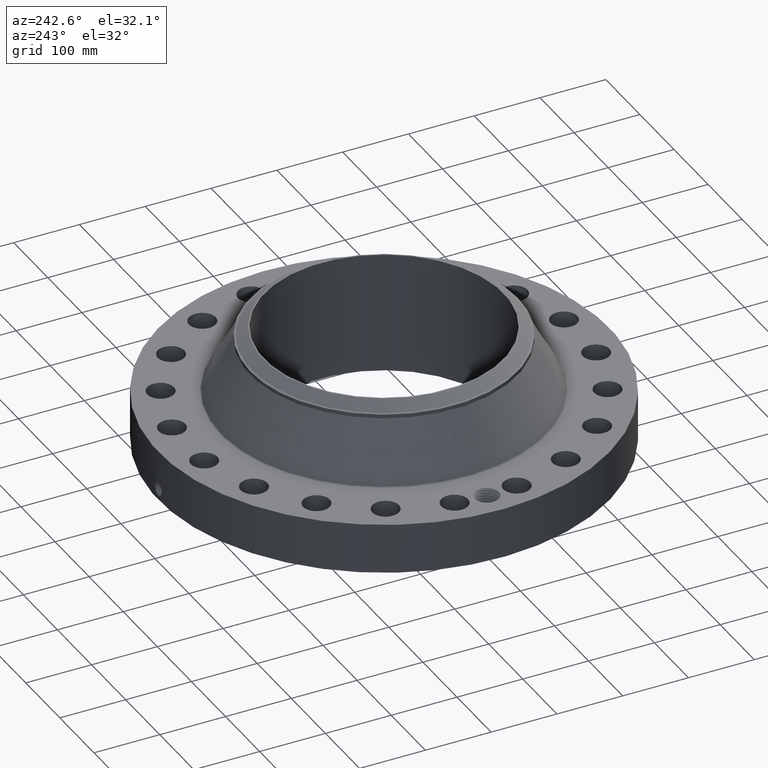
[diagram: clean part render]
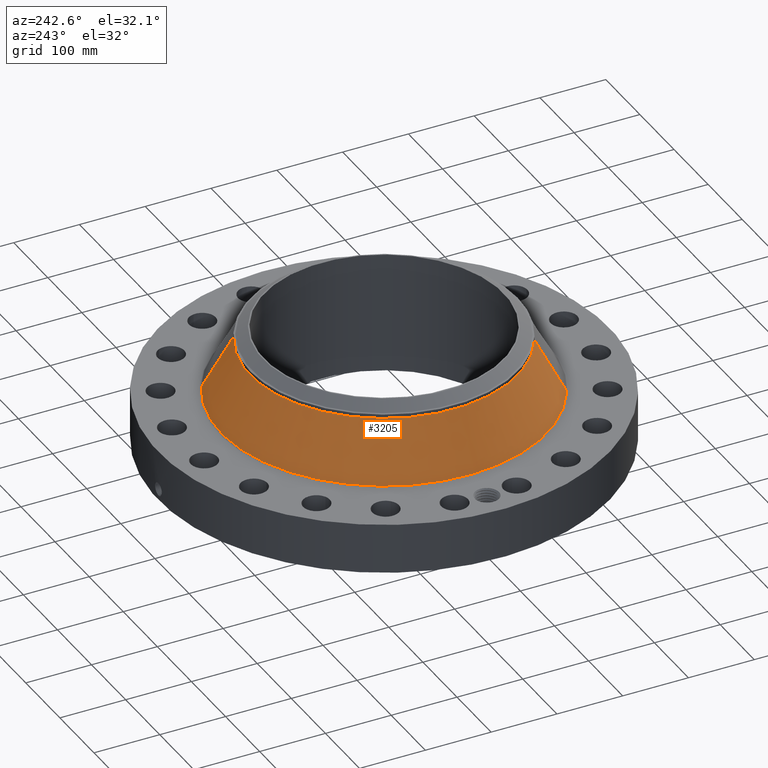
[diagram: same view with one face highlighted and labeled with its STEP entity id]
A machine part, auxiliary view. The second image highlights one B-rep face of the part: STEP entity #3205.
In plain terms, the highlighted conical surface has half-angle 28.424 deg.
Its self-contained STEP definition (entity closure, byte-faithful):
#2557=AXIS2_PLACEMENT_3D('Circle Axis2P3D',#2555,#2556,$) ;
#3166=AXIS2_PLACEMENT_3D('Cone Axis2P3D',#3163,#3164,#3165) ;
#3196=AXIS2_PLACEMENT_3D('Circle Axis2P3D',#3194,#3195,$) ;
#2533=CARTESIAN_POINT('Vertex',(4.65808237676,8.52656259739,3.31288051485)) ;
#2540=CARTESIAN_POINT('Vertex',(-4.65808237676,-8.52656259739,3.31288051485)) ;
#2555=CARTESIAN_POINT('Axis2P3D Location',(0.,0.,3.31288051485)) ;
#3163=CARTESIAN_POINT('Axis2P3D Location',(0.,0.,6.48329238413)) ;
#3168=CARTESIAN_POINT('Line Origine',(4.24674334281,7.77361154627,4.89808644949)) ;
#3172=CARTESIAN_POINT('Vertex',(3.83540430885,7.02066049515,6.48329238413)) ;
#3179=CARTESIAN_POINT('Vertex',(-3.83540430885,-7.02066049515,6.48329238413)) ;
#3182=CARTESIAN_POINT('Line Origine',(-4.24674334281,-7.77361154627,4.89808644949)) ;
#3194=CARTESIAN_POINT('Axis2P3D Location',(0.,0.,6.48329238413)) ;
#2556=DIRECTION('Axis2P3D Direction',(0.,0.,-0.0393700787402)) ;
#3164=DIRECTION('Axis2P3D Direction',(0.,0.,-0.0393700787402)) ;
#3165=DIRECTION('Axis2P3D XDirection',(-0.0188750212049,-0.0345504945626,0.)) ;
#3169=DIRECTION('Vector Direction',(0.00898442911468,0.016445887181,-0.0346239213308)) ;
#3183=DIRECTION('Vector Direction',(-0.00898442911468,-0.016445887181,-0.0346239213308)) ;
#3195=DIRECTION('Axis2P3D Direction',(0.,0.,-0.0393700787402)) ;
#3170=VECTOR('Line Direction',#3169,0.0393700787402) ;
#3184=VECTOR('Line Direction',#3183,0.0393700787402) ;
#3200=ORIENTED_EDGE('',*,*,#2559,.F.) ;
#3201=ORIENTED_EDGE('',*,*,#3186,.T.) ;
#3202=ORIENTED_EDGE('',*,*,#3198,.T.) ;
#3203=ORIENTED_EDGE('',*,*,#3174,.F.) ;
#3205=ADVANCED_FACE('PartBody',(#3204),#3167,.T.) ;
#2558=CIRCLE('generated circle',#2557,9.71596630068) ;
#3197=CIRCLE('generated circle',#3196,8.00000000003) ;
#3167=CONICAL_SURFACE('Cone',#3166,8.00000000003,0.496095884312) ;
#2559=EDGE_CURVE('',#2541,#2534,#2558,.T.) ;
#3174=EDGE_CURVE('',#2534,#3173,#3171,.F.) ;
#3186=EDGE_CURVE('',#2541,#3180,#3185,.F.) ;
#3198=EDGE_CURVE('',#3180,#3173,#3197,.T.) ;
#3199=EDGE_LOOP('',(#3200,#3201,#3202,#3203)) ;
#3204=FACE_OUTER_BOUND('',#3199,.T.) ;
#3171=LINE('Line',#3168,#3170) ;
#3185=LINE('Line',#3182,#3184) ;
#2534=VERTEX_POINT('',#2533) ;
#2541=VERTEX_POINT('',#2540) ;
#3173=VERTEX_POINT('',#3172) ;
#3180=VERTEX_POINT('',#3179) ;